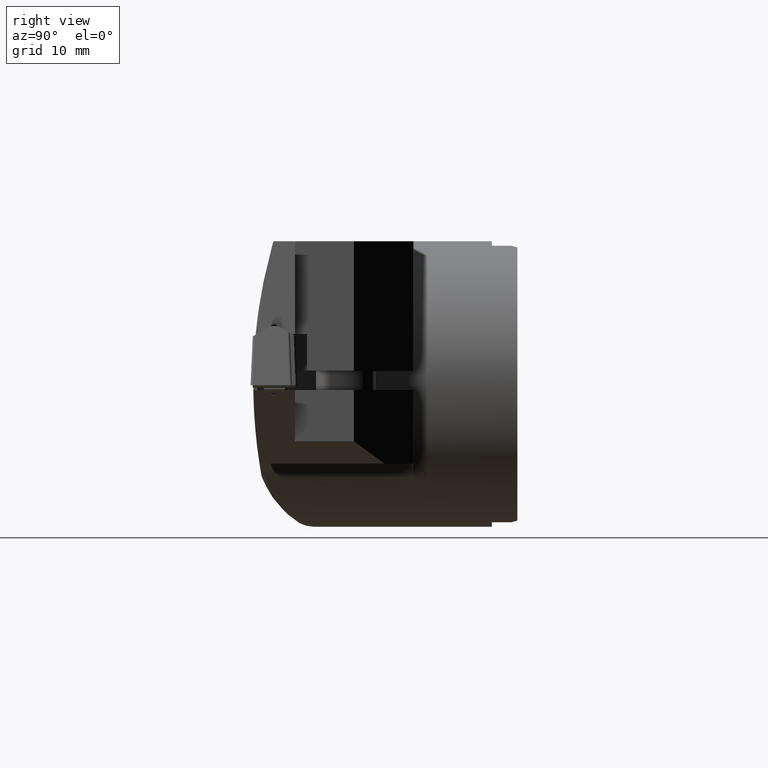
[diagram: clean part render]
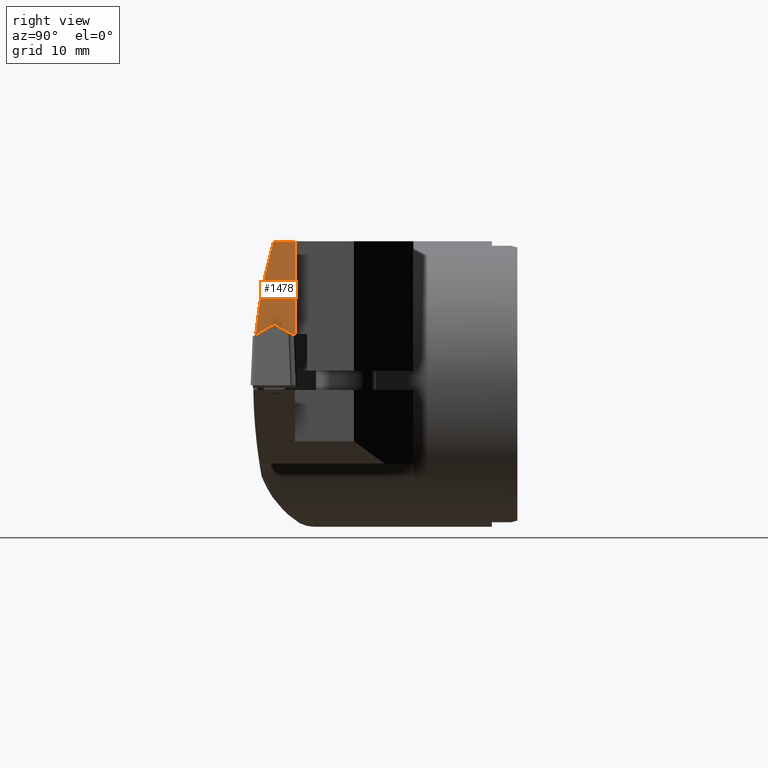
[diagram: same view with one face highlighted and labeled with its STEP entity id]
A machine part, right view. The second image highlights one B-rep face of the part: STEP entity #1478.
In plain terms, the highlighted planar face has unit normal (0.9925, -0, 0.1219).
Its self-contained STEP definition (entity closure, byte-faithful):
#960=VERTEX_POINT('NONE',#2442);
#1020=VERTEX_POINT('NONE',#2511);
#1078=EDGE_CURVE('Kante18',#1804,#1020,#2576,.T.);
#1106=EDGE_CURVE('NONE',#1804,#1554,#2605,.T.);
#1326=EDGE_CURVE('Kante17',#960,#1364,#2848,.T.);
#1364=VERTEX_POINT('NONE',#2886);
#1478=ADVANCED_FACE('Fl�che13',(#3017),#3018,.T.);
#1534=VERTEX_POINT('NONE',#3075);
#1554=VERTEX_POINT('NONE',#3095);
#1612=EDGE_CURVE('Kante2',#1020,#2152,#3158,.T.);
#1650=EDGE_CURVE('NONE',#1364,#1534,#3197,.T.);
#1658=EDGE_CURVE('NONE',#960,#2152,#3205,.T.);
#1768=EDGE_CURVE('Kante83',#1534,#1554,#3329,.T.);
#1804=VERTEX_POINT('NONE',#3375);
#2152=VERTEX_POINT('NONE',#3757);
#2442=CARTESIAN_POINT('',(35.7,-18.6955136271329,4.2));
#2511=CARTESIAN_POINT('',(35.5956331232325,-20.4477568135664,5.05));
#2576=LINE('',#4485,#4486);
#2605=LINE('',#4559,#4560);
#2848=LINE('',#5114,#5115);
#2886=CARTESIAN_POINT('',(34.7422804249574,-18.6955136271329,12.0));
#3017=FACE_OUTER_BOUND('',#5441,.T.);
#3018=PLANE('',#5442);
#3075=CARTESIAN_POINT('',(34.7422804249574,-20.5120795942991,12.0));
#3095=CARTESIAN_POINT('',(35.7,-21.9967666229246,4.20000000000001));
#3158=LINE('',#5698,#5699);
#3197=LINE('',#5800,#5801);
#3205=LINE('',#5814,#5815);
#3329=ELLIPSE('',#6091,43.8266774074599,43.5);
#3375=CARTESIAN_POINT('',(35.7,-21.92,4.2));
#3757=CARTESIAN_POINT('',(35.7,-18.9755136271329,4.2));
#4485=CARTESIAN_POINT('',(35.0002621395008,-12.0492025849837,9.89890754467585));
#4486=VECTOR('',#7307,1.0);
#4559=CARTESIAN_POINT('',(35.7,-8.8495,4.2));
#4560=VECTOR('',#7328,1.0);
#5114=CARTESIAN_POINT('',(34.2676663488612,-18.6955136271329,15.865421455321));
#5115=VECTOR('',#7604,1.0);
#5441=EDGE_LOOP('',(#7778,#7779,#7780,#7781,#7782,#7783,#7784));
#5442=AXIS2_PLACEMENT_3D('',#7785,#7786,#7787);
#5698=CARTESIAN_POINT('',(36.0313970073446,-14.3006876557223,1.50098796699154));
#5699=VECTOR('',#7902,1.0);
#5800=CARTESIAN_POINT('',(34.7422804249574,0.000499999999997845,12.0));
#5801=VECTOR('',#7932,1.0);
#5814=CARTESIAN_POINT('',(35.7,-8.8495,4.2));
#5815=VECTOR('',#7935,1.0);
#6091=AXIS2_PLACEMENT_3D('',#8068,#8069,#8070);
#7307=DIRECTION('',(-0.0612769123431549,0.864397972585702,0.499060402159316));
#7328=DIRECTION('',(-1.52839072773287E-016,-1.0,-5.51492957502987E-048));
#7604=DIRECTION('',(-0.121869343405141,-1.11209032944498E-016,0.992546151641323));
#7778=ORIENTED_EDGE('',*,*,#1650,.T.);
#7779=ORIENTED_EDGE('',*,*,#1768,.T.);
#7780=ORIENTED_EDGE('',*,*,#1106,.F.);
#7781=ORIENTED_EDGE('',*,*,#1078,.T.);
#7782=ORIENTED_EDGE('',*,*,#1612,.T.);
#7783=ORIENTED_EDGE('',*,*,#1658,.F.);
#7784=ORIENTED_EDGE('',*,*,#1326,.T.);
#7785=CARTESIAN_POINT('',(34.7422804249574,0.001000000000001,12.0));
#7786=DIRECTION('',(0.992546151641323,-1.51699833501554E-016,0.121869343405141));
#7787=DIRECTION('',(0.0,1.0,1.24477435639614E-015));
#7902=DIRECTION('',(0.0612769123431548,0.864397972585703,-0.499060402159313));
#7932=DIRECTION('',(-1.52839072773287E-016,-1.0,0.0));
#7935=DIRECTION('',(-1.52839072773287E-016,-1.0,-5.51492957502987E-048));
#8068=CARTESIAN_POINT('',(36.2156951557922,21.3,0.0));
#8069=DIRECTION('',(0.992546151641323,-1.51699833501554E-016,0.121869343405141));
#8070=DIRECTION('',(0.121869343405141,0.0,-0.992546151641323));